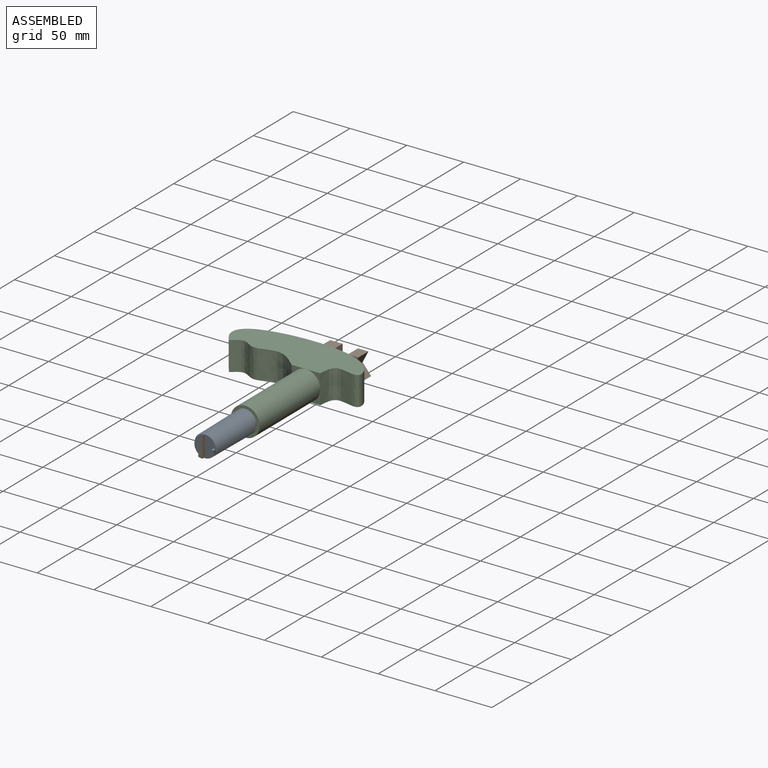
[diagram: assembled view]
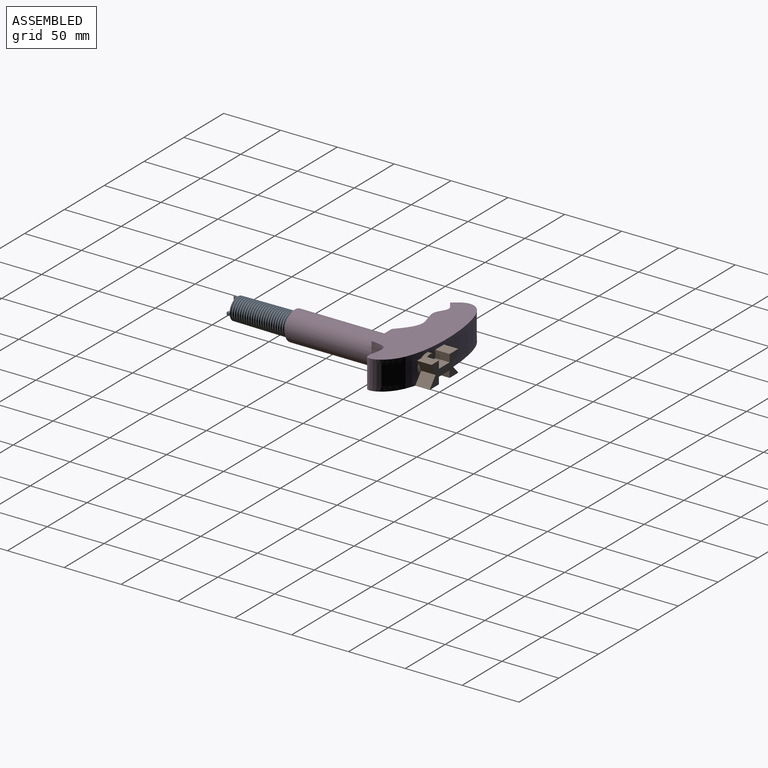
[diagram: assembled view, second angle]
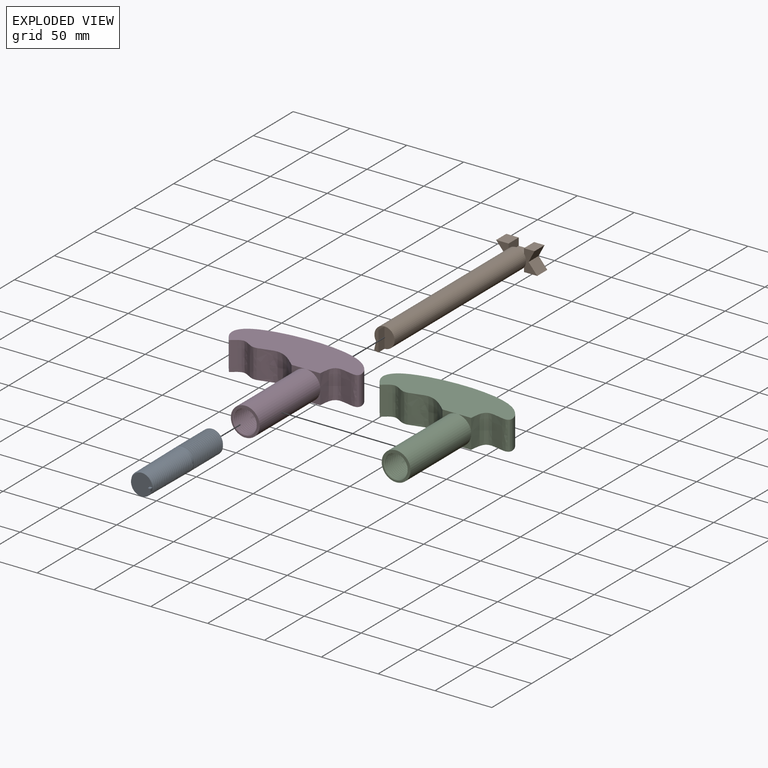
[diagram: exploded view]
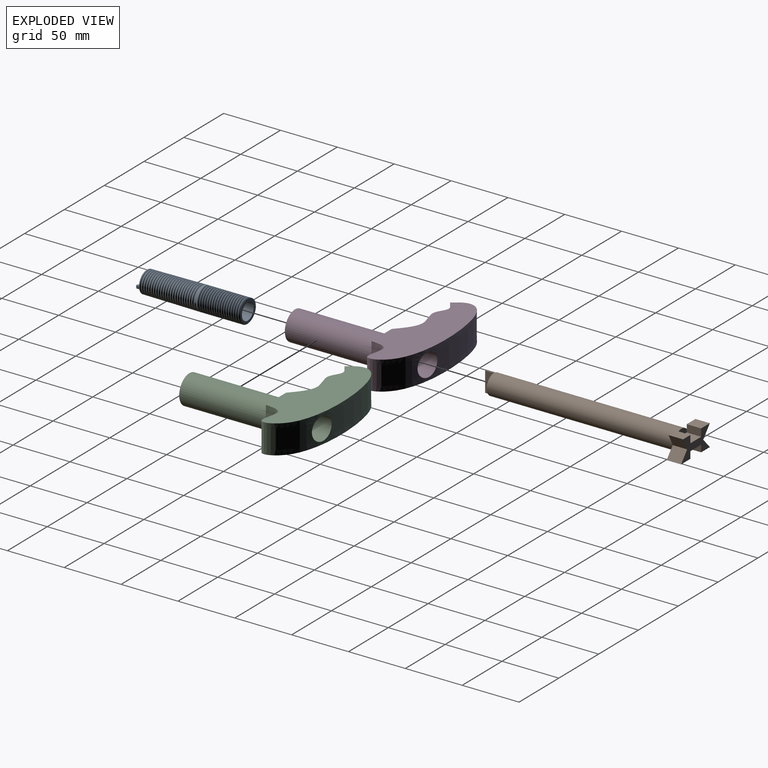
[diagram: exploded view, second angle]
ASSEMBLY  parts=4 mates=2
PART A: 15 faces, bbox 21.3x93.1x24.3 mm
  f0: plane 19.31x19.29mm, normal (0,-1,0), area 104.5mm2, adj f3,f4,f6,f7,f11,f12
  f1: cylinder r=10.16mm len=38.1mm, axis (0,1,0), area 716.4mm2, adj f2,f3,f8,f9,f10
  f2: plane 20.38x20.27mm, normal (0,1,0), area 125.5mm2, adj f1,f4,f8,f9
  f3: cone r=10.16mm half-angle=0.6deg, axis (0,1,0), area 1163.7mm2, adj f0,f1,f5,f6,f7,f13
  f4: cylinder r=7.35mm len=88.9mm, axis (0,1,0), area 4106.5mm2, adj f0,f2
  f5: plane 1.51x0.76mm, normal (0,0,-1), area 0.6mm2, adj f3,f6,f7
  f6: bspline ~51.6x20.49mm, area 1577.5mm2, adj f0,f3,f5,f7
  f7: bspline ~50.91x20.49mm, area 1445.2mm2, adj f0,f3,f5,f6
  f8: bspline ~38.16x23.46mm, area 1592.9mm2, adj f1,f2,f9,f10
  f9: bspline ~38.86x23.46mm, area 1623.4mm2, adj f1,f2,f8,f10
  f10: plane 1.52x1.32mm, normal (0,0,1), area 1mm2, adj f1,f8,f9
  f11: plane 2.54x2.31mm, normal (0,0,1), area 5.9mm2, adj f0,f12,f13,f14
  f12: plane 2.69x2.54mm, normal (-0.81,0,-0.58), area 8.4mm2, adj f0,f11,f13,f14
  f13: cylinder r=9.67mm len=2.69mm, axis (0,1,0), area 6.9mm2, adj f3,f11,f12,f14
  f14: plane 2.69x2.31mm, normal (0,-1,0), area 3.3mm2, adj f11,f12,f13
PART B: 25 faces, bbox 36.1x185.4x19 mm
  f0: plane 17.78x8.89mm, normal (0,1,0), area 124.1mm2, adj f19,f22
  f1: plane 19x11.65mm, normal (0,1,0), area 123.2mm2, adj f3,f4,f5,f6,f7,f8,f19
  f2: plane 13.53x12.7mm, normal (0,0,-1), area 171.8mm2, adj f3,f15,f16,f18
  f3: plane 12.7x6.62mm, normal (-1,0,0), area 84.1mm2, adj f1,f2,f4,f16,f18
  f4: plane 12.7x9.21mm, normal (0,0,-1), area 117mm2, adj f1,f3,f5,f16
  f5: plane 12.7x9.93mm, normal (0.89,0,0.46), area 142.2mm2, adj f1,f4,f6,f16
  f6: plane 12.7x9.07mm, normal (0.77,0,-0.64), area 150.4mm2, adj f1,f5,f7,f16
  f7: plane 12.7x11.65mm, normal (0,0,1), area 148mm2, adj f1,f6,f8,f16
  f8: plane 12.7x6.04mm, normal (-1,0,0), area 76.8mm2, adj f1,f7,f9,f16,f21
  f9: plane 13.53x12.7mm, normal (0,0,1), area 171.8mm2, adj f8,f10,f16,f21
  f10: plane 12.7x6.04mm, normal (1,0,0), area 76.8mm2, adj f9,f11,f16,f17,f21
  f11: plane 12.7x10.94mm, normal (0,0,1), area 138.9mm2, adj f10,f12,f16,f17
  f12: plane 12.7x9.07mm, normal (-0.74,0,-0.68), area 156.5mm2, adj f11,f13,f16,f17
  f13: plane 12.7x9.93mm, normal (-0.77,0,0.64), area 164.7mm2, adj f12,f14,f16,f17
  f14: plane 12.7x10.94mm, normal (0,0,-1), area 138.9mm2, adj f13,f15,f16,f17
  f15: plane 12.7x6.62mm, normal (1,0,0), area 84.1mm2, adj f2,f14,f16,f17,f18
  f16: plane 36.11x19mm, normal (0,-1,0), area 350.9mm2, adj f2,f3,f4,f5,f6,f7,f8,f9
  f17: plane 19x10.94mm, normal (0,1,0), area 108.3mm2, adj f10,f11,f12,f13,f14,f15,f19
  f18: plane 13.53x5.58mm, normal (0,-1,0), area 62.5mm2, adj f2,f3,f15,f19
  f19: cylinder r=8.89mm len=172.72mm, axis (0,-1,0), area 9252.2mm2, adj f0,f1,f17,f18,f20,f21,f22,f23
  f20: plane 16.92x8.89mm, normal (0,1,0), area 89.6mm2, adj f19,f23
  f21: plane 13.53x5.87mm, normal (0,-1,0), area 66.4mm2, adj f8,f9,f10,f19
  f22: plane 17.78x7.62mm, normal (1,0,0), area 135.5mm2, adj f0,f19,f23,f24
  f23: plane 16.92x7.62mm, normal (-0.98,0,-0.22), area 132.1mm2, adj f19,f20,f22,f24
  f24: plane 17.78x3.82mm, normal (0,1,0), area 34.6mm2, adj f19,f22,f23
PART C: 33 faces, bbox 124.1x123.3x27.3 mm
  f0: cylinder r=10.16mm len=83.19mm, axis (0,-1,0), area 5107.5mm2, adj f1,f21,f30,f31,f32
  f1: cylinder r=10.16mm len=20.32mm, axis (0,-1,0), area 37.8mm2, adj f0,f2,f31,f32
  f2: cylinder r=10.16mm len=20.32mm, axis (0,-1,0), area 37.9mm2, adj f1,f3,f31,f32
  f3: cylinder r=10.16mm len=20.32mm, axis (0,-1,0), area 37.9mm2, adj f2,f4,f31,f32
  f4: cylinder r=10.16mm len=20.32mm, axis (0,-1,0), area 37.8mm2, adj f3,f5,f31,f32
  f5: cylinder r=10.16mm len=20.32mm, axis (0,-1,0), area 37.9mm2, adj f4,f6,f31,f32
  f6: cylinder r=10.16mm len=20.32mm, axis (0,-1,0), area 37.8mm2, adj f5,f7,f31,f32
  f7: cylinder r=10.16mm len=20.32mm, axis (0,-1,0), area 37.8mm2, adj f6,f8,f31,f32
  f8: cylinder r=10.16mm len=20.32mm, axis (0,-1,0), area 37.8mm2, adj f7,f9,f31,f32
  f9: cylinder r=10.16mm len=20.32mm, axis (0,-1,0), area 37.8mm2, adj f8,f10,f31,f32
  f10: cylinder r=10.16mm len=20.32mm, axis (0,-1,0), area 37.8mm2, adj f9,f11,f31,f32
  f11: cylinder r=10.16mm len=20.32mm, axis (0,-1,0), area 37.9mm2, adj f10,f12,f31,f32
  f12: cylinder r=10.16mm len=20.32mm, axis (0,-1,0), area 37.9mm2, adj f11,f13,f31,f32
  f13: cylinder r=10.16mm len=20.32mm, axis (0,-1,0), area 37.8mm2, adj f12,f14,f31,f32
  f14: cylinder r=10.16mm len=20.32mm, axis (0,-1,0), area 37.9mm2, adj f13,f15,f31,f32
  f15: cylinder r=10.16mm len=20.32mm, axis (0,-1,0), area 37.8mm2, adj f14,f16,f31,f32
  f16: cylinder r=10.16mm len=20.32mm, axis (0,-1,0), area 37.8mm2, adj f15,f17,f31,f32
  f17: cylinder r=10.16mm len=20.32mm, axis (0,-1,0), area 24.2mm2, adj f16,f28,f31,f32
  f18: plane 12.59x11.04mm, normal (0,-1,0), area 33.4mm2, adj f21,f24,f27
  f19: plane 12.59x11.04mm, normal (0,-1,0), area 33.4mm2, adj f22,f24,f27
  f20: plane 12.59x11.04mm, normal (0,-1,0), area 33.4mm2, adj f22,f25,f27
  f21: extruded ~117.86x42.28mm, area 4493.2mm2, adj f0,f18,f22,f23,f24,f25,f29
  f22: extruded ~61.16x25.4mm, area 1735.8mm2, adj f19,f20,f21,f24,f25,f26
  f23: plane 12.59x11.04mm, normal (0,-1,0), area 33.4mm2, adj f21,f25,f27
  f24: plane 123.29x45.47mm, normal (0,0,1), area 3415mm2, adj f18,f19,f21,f22
  f25: plane 123.29x45.47mm, normal (0,0,-1), area 3415mm2, adj f20,f21,f22,f23
  f26: plane 3.31x0.11mm, normal (0,1,0), area 0.2mm2, adj f22,f27
  f27: cylinder r=12.7mm len=76.2mm, axis (0,1,0), area 6080.5mm2, adj f18,f19,f20,f23,f26,f28,f29
  f28: plane 26.22x26.22mm, normal (0,-1,0), area 150.8mm2, adj f17,f27,f31,f32
  f29: plane 3.31x0.11mm, normal (0,1,0), area 0.2mm2, adj f21,f27
  f30: plane 1.52x1.32mm, normal (0,0,1), area 1mm2, adj f0,f31,f32
  f31: bspline ~38.86x26.51mm, area 1851.4mm2, adj f0,f1,f2,f3,f4,f5,f6,f7
  f32: bspline ~38.16x26.51mm, area 1809.8mm2, adj f0,f1,f2,f3,f4,f5,f6,f7
PART D: same geometry as C
PLACE A rot(axis=(1,0,0),0deg) t=(-55.33,-42.79,10.79)mm
PLACE B rot(axis=(-1,0,0),180deg) t=(-55.33,37.93,10.79)mm
PLACE C t=(-67.92,-28.44,-1.91)mm
PLACE D t=(-67.92,-28.44,-1.91)mm fixed
MATE fastened D.f27 <-> A.f1  axis (0,1,0) through (-55.33,-42.79,10.79)mm
MATE slider B.f19 <-> D.f27  axis (0,1,0) through (-55.33,37.93,10.79)mm
